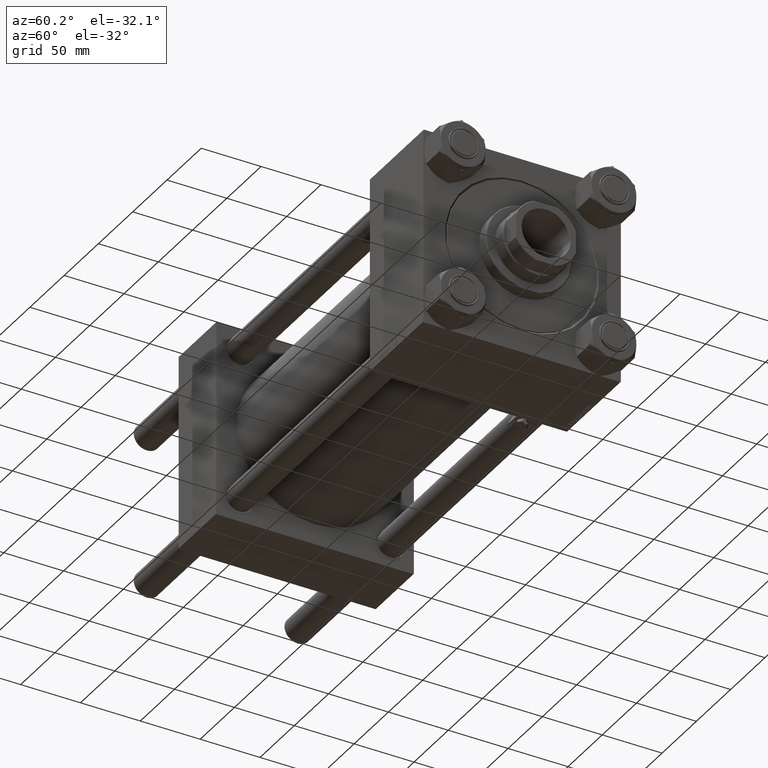
[diagram: clean part render]
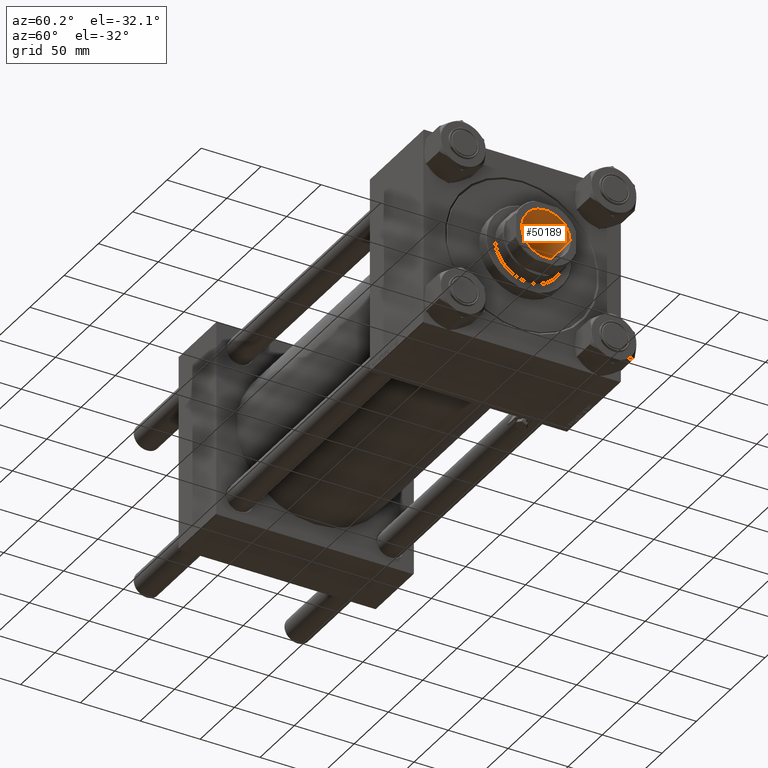
[diagram: same view with one face highlighted and labeled with its STEP entity id]
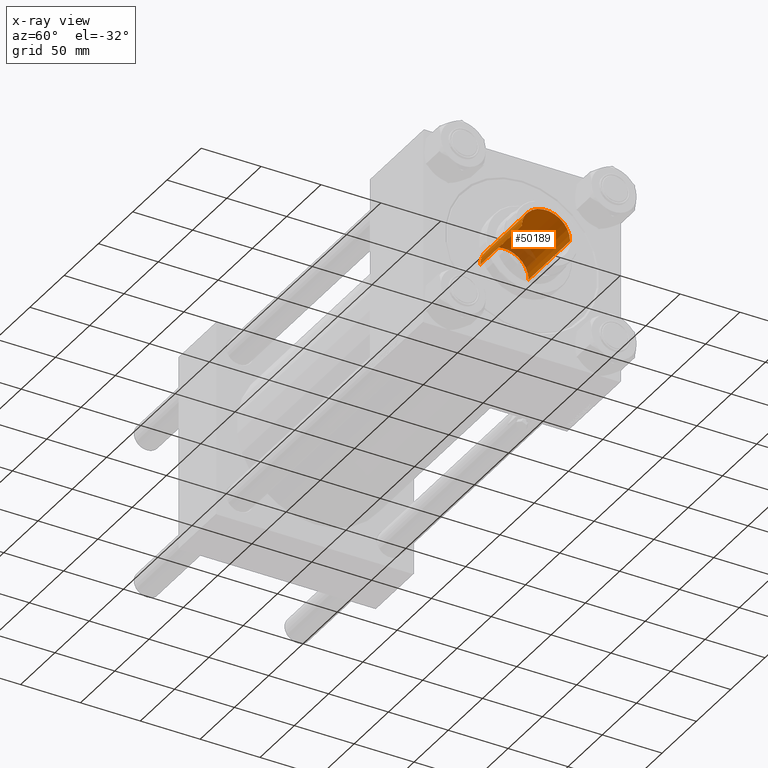
[diagram: x-ray of the same camera — body ghosted, the highlighted face saturated]
A machine part, auxiliary view. The second image highlights one B-rep face of the part: STEP entity #50189.
The next image is the same camera in x-ray: the body ghosted, the highlighted face saturated — about 13% of this face is hidden behind the body in this view.
In plain terms, the highlighted cylindrical surface (edge-blend (fillet) strip) has radius 20.25 mm, axis along (1, 0, -0).
Its self-contained STEP definition (entity closure, byte-faithful):
#24 = AXIS2_PLACEMENT_3D ( 'NONE', #40922, #28446, #8457 ) ;
#465 = AXIS2_PLACEMENT_3D ( 'NONE', #41648, #37745, #17976 ) ;
#983 = CARTESIAN_POINT ( 'NONE',  ( 20.24999999999999289, 0.000000000000000000, 337.0000000000000000 ) ) ;
#1724 = VECTOR ( 'NONE', #12675, 1000.000000000000000 ) ;
#1780 = ORIENTED_EDGE ( 'NONE', *, *, #50856, .F. ) ;
#3590 = CARTESIAN_POINT ( 'NONE',  ( 20.24999999999999289, 0.000000000000000000, 336.6999999999999886 ) ) ;
#4327 = CARTESIAN_POINT ( 'NONE',  ( -20.24999999999999289, 2.479909768273389511E-15, 337.0000000000000000 ) ) ;
#4464 = EDGE_LOOP ( 'NONE', ( #39155, #14476, #37828, #1780 ) ) ;
#6411 = LINE ( 'NONE', #4327, #38856 ) ;
#6492 = CARTESIAN_POINT ( 'NONE',  ( 0.000000000000000000, 0.000000000000000000, 276.0000000000000000 ) ) ;
#7465 = VERTEX_POINT ( 'NONE', #48676 ) ;
#8428 = EDGE_CURVE ( 'NONE', #7465, #25252, #6411, .T. ) ;
#8457 = DIRECTION ( 'NONE',  ( 1.000000000000000000, 0.000000000000000000, 0.000000000000000000 ) ) ;
#8696 = FACE_OUTER_BOUND ( 'NONE', #4464, .T. ) ;
#9252 = VERTEX_POINT ( 'NONE', #48507 ) ;
#12675 = DIRECTION ( 'NONE',  ( -0.000000000000000000, -0.000000000000000000, 1.000000000000000000 ) ) ;
#14476 = ORIENTED_EDGE ( 'NONE', *, *, #8428, .T. ) ;
#14552 = DIRECTION ( 'NONE',  ( -0.000000000000000000, -0.000000000000000000, 1.000000000000000000 ) ) ;
#15168 = CARTESIAN_POINT ( 'NONE',  ( -20.24999999999999289, 2.479909768273389511E-15, 336.6999999999999886 ) ) ;
#15556 = AXIS2_PLACEMENT_3D ( 'NONE', #6492, #14552, #46531 ) ;
#17976 = DIRECTION ( 'NONE',  ( 1.000000000000000000, 0.000000000000000000, 0.000000000000000000 ) ) ;
#23519 = VERTEX_POINT ( 'NONE', #3590 ) ;
#23558 = DIRECTION ( 'NONE',  ( -0.000000000000000000, -0.000000000000000000, 1.000000000000000000 ) ) ;
#25252 = VERTEX_POINT ( 'NONE', #15168 ) ;
#28446 = DIRECTION ( 'NONE',  ( -0.000000000000000000, -0.000000000000000000, 1.000000000000000000 ) ) ;
#33672 = CIRCLE ( 'NONE', #465, 20.24999999999999289 ) ;
#33932 = EDGE_CURVE ( 'NONE', #25252, #23519, #33672, .T. ) ;
#34984 = EDGE_CURVE ( 'NONE', #7465, #9252, #45408, .T. ) ;
#37745 = DIRECTION ( 'NONE',  ( 0.000000000000000000, 0.000000000000000000, 1.000000000000000000 ) ) ;
#37828 = ORIENTED_EDGE ( 'NONE', *, *, #33932, .T. ) ;
#38856 = VECTOR ( 'NONE', #23558, 1000.000000000000000 ) ;
#39155 = ORIENTED_EDGE ( 'NONE', *, *, #34984, .F. ) ;
#40734 = LINE ( 'NONE', #983, #1724 ) ;
#40922 = CARTESIAN_POINT ( 'NONE',  ( 0.000000000000000000, 0.000000000000000000, 337.0000000000000000 ) ) ;
#41648 = CARTESIAN_POINT ( 'NONE',  ( 0.000000000000000000, 0.000000000000000000, 336.6999999999999886 ) ) ;
#44558 = CYLINDRICAL_SURFACE ( 'NONE', #24, 20.24999999999999289 ) ;
#45408 = CIRCLE ( 'NONE', #15556, 20.24999999999998934 ) ;
#46531 = DIRECTION ( 'NONE',  ( 1.000000000000000000, 0.000000000000000000, 0.000000000000000000 ) ) ;
#48507 = CARTESIAN_POINT ( 'NONE',  ( 20.24999999999998934, 0.000000000000000000, 276.0000000000000000 ) ) ;
#48676 = CARTESIAN_POINT ( 'NONE',  ( -20.24999999999998934, 2.479909768273389117E-15, 276.0000000000000000 ) ) ;
#50189 = ADVANCED_FACE ( 'NONE', ( #8696 ), #44558, .F. ) ;
#50856 = EDGE_CURVE ( 'NONE', #9252, #23519, #40734, .T. ) ;